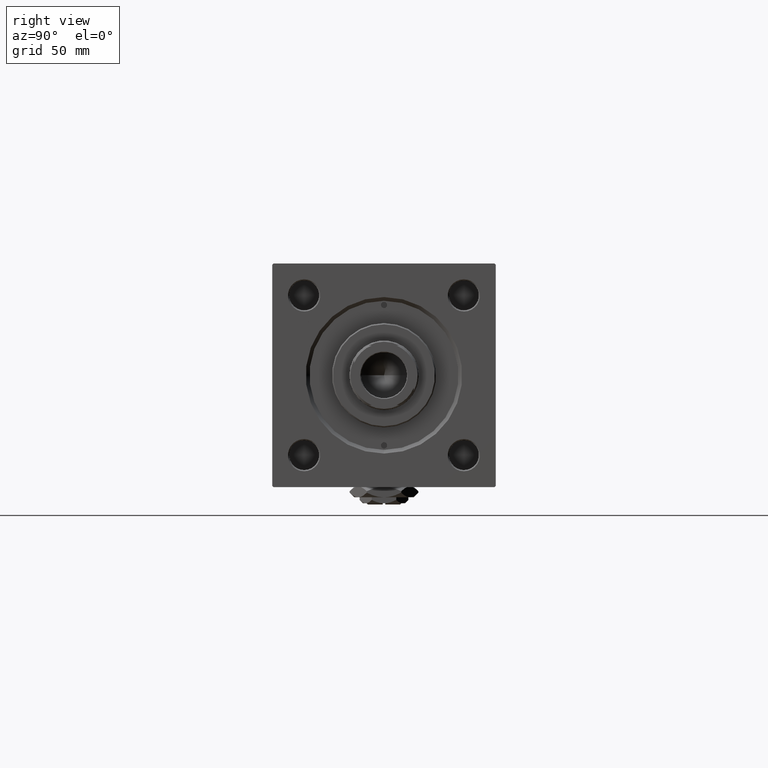
[diagram: clean part render]
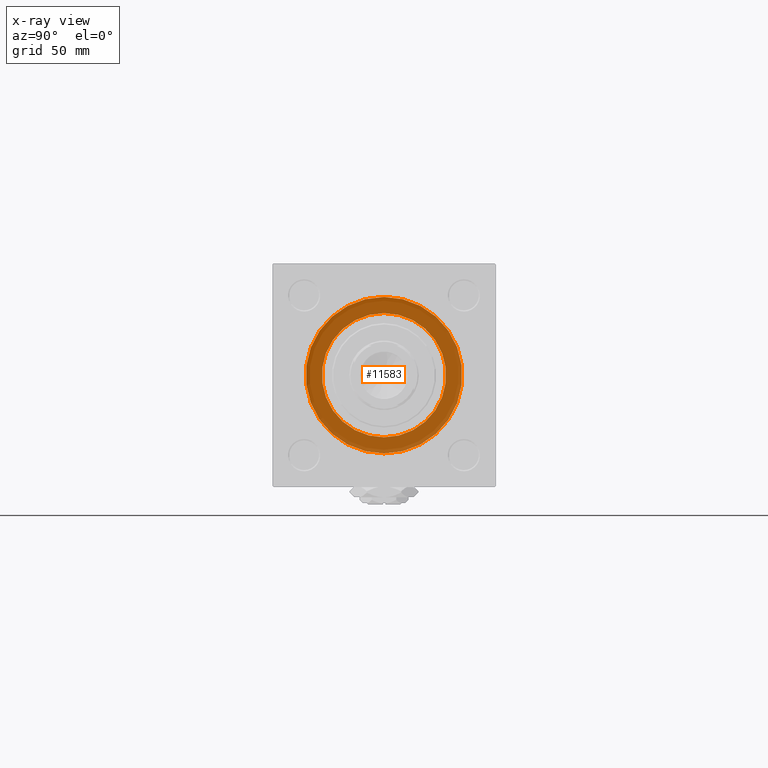
[diagram: x-ray — body ghosted, one internal face saturated and labeled with its STEP entity id]
A machine part, right view, then the same camera in x-ray: the body is ghosted and one INTERNAL B-rep face — a face not visible from any outside direction — is saturated and labeled: STEP entity #11583.
In plain terms, the highlighted planar face has unit normal (-1, 0, 0).
Its self-contained STEP definition (entity closure, byte-faithful):
#309 = DIRECTION ( 'NONE',  ( -0.000000000000000000, 0.000000000000000000, 1.000000000000000000 ) ) ;
#2957 = DIRECTION ( 'NONE',  ( 1.000000000000000000, 0.000000000000000000, 0.000000000000000000 ) ) ;
#4224 = DIRECTION ( 'NONE',  ( 1.000000000000000000, 0.000000000000000000, 0.000000000000000000 ) ) ;
#4754 = CARTESIAN_POINT ( 'NONE',  ( 156.0000000000000000, -2.602085213965210642E-15, 0.000000000000000000 ) ) ;
#6715 = FACE_BOUND ( 'NONE', #35613, .T. ) ;
#6794 = CIRCLE ( 'NONE', #44895, 31.50000000000000000 ) ;
#7148 = ORIENTED_EDGE ( 'NONE', *, *, #44322, .F. ) ;
#7156 = DIRECTION ( 'NONE',  ( -1.000000000000000000, -0.000000000000000000, -0.000000000000000000 ) ) ;
#8036 = AXIS2_PLACEMENT_3D ( 'NONE', #18807, #7156, #38967 ) ;
#9955 = VERTEX_POINT ( 'NONE', #26284 ) ;
#10569 = CARTESIAN_POINT ( 'NONE',  ( 156.0000000000000000, 3.061616997868383043E-15, 25.00000000000000000 ) ) ;
#11583 = ADVANCED_FACE ( 'NONE', ( #6715, #22863 ), #39045, .T. ) ;
#13381 = CIRCLE ( 'NONE', #23533, 31.50000000000000000 ) ;
#13778 = ORIENTED_EDGE ( 'NONE', *, *, #36731, .F. ) ;
#14123 = VERTEX_POINT ( 'NONE', #10569 ) ;
#14646 = EDGE_LOOP ( 'NONE', ( #13778, #48440 ) ) ;
#17224 = CARTESIAN_POINT ( 'NONE',  ( 156.0000000000000000, -2.602085213965210642E-15, 31.50000000000000000 ) ) ;
#17945 = AXIS2_PLACEMENT_3D ( 'NONE', #44860, #23629, #309 ) ;
#18807 = CARTESIAN_POINT ( 'NONE',  ( 156.0000000000000000, 0.000000000000000000, 0.000000000000000000 ) ) ;
#19441 = AXIS2_PLACEMENT_3D ( 'NONE', #36907, #37432, #49645 ) ;
#19617 = EDGE_CURVE ( 'NONE', #14123, #9955, #30894, .T. ) ;
#20422 = VERTEX_POINT ( 'NONE', #17224 ) ;
#22863 = FACE_OUTER_BOUND ( 'NONE', #14646, .T. ) ;
#23533 = AXIS2_PLACEMENT_3D ( 'NONE', #4754, #4224, #28861 ) ;
#23629 = DIRECTION ( 'NONE',  ( -1.000000000000000000, 0.000000000000000000, -0.000000000000000000 ) ) ;
#26284 = CARTESIAN_POINT ( 'NONE',  ( 156.0000000000000000, 0.000000000000000000, -25.00000000000000000 ) ) ;
#28861 = DIRECTION ( 'NONE',  ( 0.000000000000000000, 0.000000000000000000, -1.000000000000000000 ) ) ;
#30894 = CIRCLE ( 'NONE', #8036, 25.00000000000000000 ) ;
#32509 = CARTESIAN_POINT ( 'NONE',  ( 156.0000000000000000, 1.255552203348951850E-15, -31.50000000000000000 ) ) ;
#35613 = EDGE_LOOP ( 'NONE', ( #7148, #50736 ) ) ;
#36731 = EDGE_CURVE ( 'NONE', #20422, #37125, #13381, .T. ) ;
#36907 = CARTESIAN_POINT ( 'NONE',  ( 156.0000000000000000, 0.000000000000000000, 0.000000000000000000 ) ) ;
#37125 = VERTEX_POINT ( 'NONE', #32509 ) ;
#37432 = DIRECTION ( 'NONE',  ( -1.000000000000000000, -0.000000000000000000, -0.000000000000000000 ) ) ;
#38967 = DIRECTION ( 'NONE',  ( 0.000000000000000000, 0.000000000000000000, 1.000000000000000000 ) ) ;
#39045 = PLANE ( 'NONE',  #17945 ) ;
#40634 = CIRCLE ( 'NONE', #19441, 25.00000000000000000 ) ;
#41295 = EDGE_CURVE ( 'NONE', #37125, #20422, #6794, .T. ) ;
#44322 = EDGE_CURVE ( 'NONE', #9955, #14123, #40634, .T. ) ;
#44549 = CARTESIAN_POINT ( 'NONE',  ( 156.0000000000000000, -2.602085213965210642E-15, 0.000000000000000000 ) ) ;
#44860 = CARTESIAN_POINT ( 'NONE',  ( 156.0000000000000000, 0.000000000000000000, 0.000000000000000000 ) ) ;
#44895 = AXIS2_PLACEMENT_3D ( 'NONE', #44549, #2957, #48011 ) ;
#48011 = DIRECTION ( 'NONE',  ( 0.000000000000000000, 0.000000000000000000, -1.000000000000000000 ) ) ;
#48440 = ORIENTED_EDGE ( 'NONE', *, *, #41295, .F. ) ;
#49645 = DIRECTION ( 'NONE',  ( 0.000000000000000000, 0.000000000000000000, 1.000000000000000000 ) ) ;
#50736 = ORIENTED_EDGE ( 'NONE', *, *, #19617, .F. ) ;